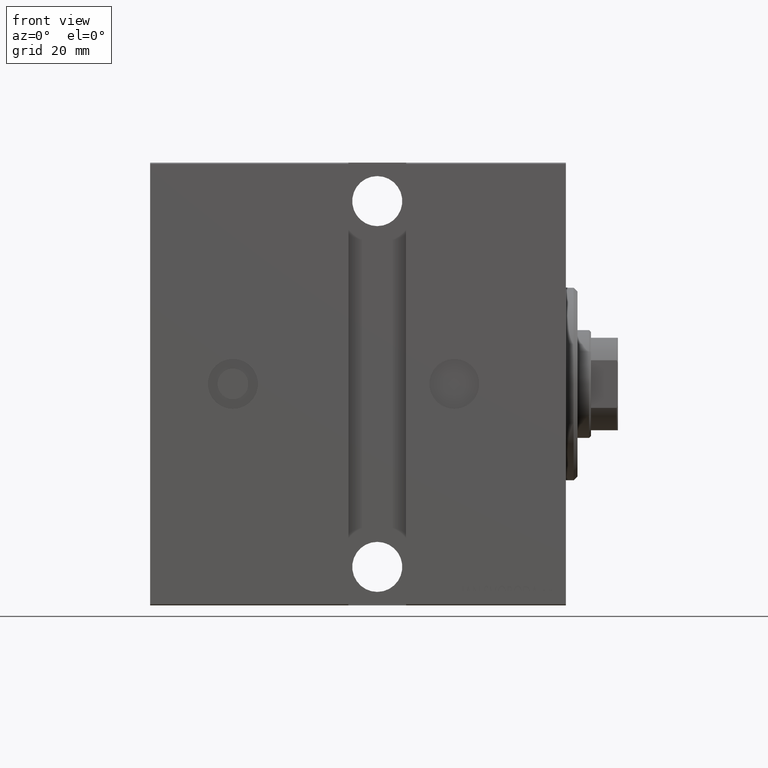
[diagram: clean part render]
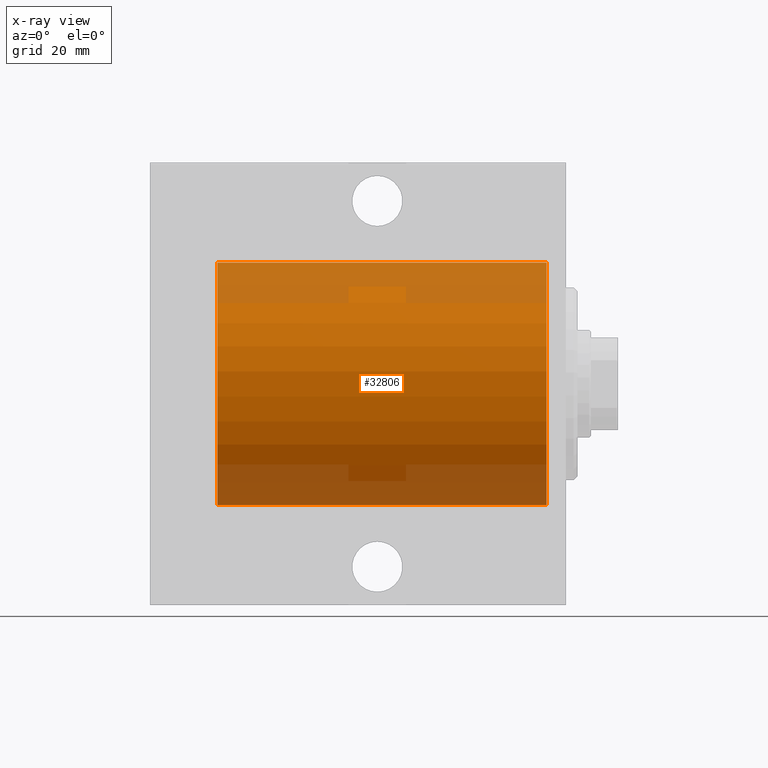
[diagram: x-ray — body ghosted, one internal face saturated and labeled with its STEP entity id]
A machine part, front view, then the same camera in x-ray: the body is ghosted and one INTERNAL B-rep face — a face not visible from any outside direction — is saturated and labeled: STEP entity #32806.
In plain terms, the highlighted cylindrical surface (partial cylindrical patch) has radius 31.5 mm, axis along (1, 0, -0).
Its self-contained STEP definition (entity closure, byte-faithful):
#1619 = EDGE_CURVE ( 'NONE', #8972, #35236, #10020, .T. ) ;
#2065 = LINE ( 'NONE', #27722, #36559 ) ;
#4325 = DIRECTION ( 'NONE',  ( 0.000000000000000000, 0.000000000000000000, 1.000000000000000000 ) ) ;
#4702 = EDGE_LOOP ( 'NONE', ( #13018, #20186, #18350, #33462 ) ) ;
#7529 = CARTESIAN_POINT ( 'NONE',  ( 5.000000000000004441, 0.000000000000000000, 0.000000000000000000 ) ) ;
#7625 = FACE_OUTER_BOUND ( 'NONE', #4702, .T. ) ;
#8972 = VERTEX_POINT ( 'NONE', #25593 ) ;
#9594 = CARTESIAN_POINT ( 'NONE',  ( 90.50000000000000000, 3.857637417314162689E-15, -31.50000000000000000 ) ) ;
#10020 = LINE ( 'NONE', #9594, #37483 ) ;
#13018 = ORIENTED_EDGE ( 'NONE', *, *, #1619, .F. ) ;
#13457 = DIRECTION ( 'NONE',  ( -1.000000000000000000, -0.000000000000000000, -0.000000000000000000 ) ) ;
#17029 = EDGE_CURVE ( 'NONE', #40574, #35236, #20258, .T. ) ;
#17054 = DIRECTION ( 'NONE',  ( -1.000000000000000000, 0.000000000000000000, 0.000000000000000000 ) ) ;
#17616 = DIRECTION ( 'NONE',  ( -1.000000000000000000, -0.000000000000000000, -0.000000000000000000 ) ) ;
#17681 = CARTESIAN_POINT ( 'NONE',  ( 90.50000000000000000, 0.000000000000000000, 0.000000000000000000 ) ) ;
#17747 = DIRECTION ( 'NONE',  ( 0.000000000000000000, 0.000000000000000000, 1.000000000000000000 ) ) ;
#18350 = ORIENTED_EDGE ( 'NONE', *, *, #30151, .T. ) ;
#20186 = ORIENTED_EDGE ( 'NONE', *, *, #24928, .F. ) ;
#20258 = CIRCLE ( 'NONE', #40156, 31.50000000000000000 ) ;
#20674 = DIRECTION ( 'NONE',  ( 0.000000000000000000, 0.000000000000000000, 1.000000000000000000 ) ) ;
#20990 = CARTESIAN_POINT ( 'NONE',  ( 90.50000000000000000, 0.000000000000000000, 0.000000000000000000 ) ) ;
#21207 = DIRECTION ( 'NONE',  ( -1.000000000000000000, -0.000000000000000000, -0.000000000000000000 ) ) ;
#24928 = EDGE_CURVE ( 'NONE', #30570, #8972, #27622, .T. ) ;
#25593 = CARTESIAN_POINT ( 'NONE',  ( 90.50000000000000000, 3.857637417314162689E-15, -31.50000000000000000 ) ) ;
#26996 = CARTESIAN_POINT ( 'NONE',  ( 90.50000000000000000, 0.000000000000000000, 31.50000000000000000 ) ) ;
#27622 = CIRCLE ( 'NONE', #35160, 31.50000000000000000 ) ;
#27722 = CARTESIAN_POINT ( 'NONE',  ( 90.50000000000000000, 0.000000000000000000, 31.50000000000000000 ) ) ;
#30151 = EDGE_CURVE ( 'NONE', #30570, #40574, #2065, .T. ) ;
#30570 = VERTEX_POINT ( 'NONE', #26996 ) ;
#31284 = CYLINDRICAL_SURFACE ( 'NONE', #40050, 31.50000000000000000 ) ;
#32806 = ADVANCED_FACE ( 'NONE', ( #7625 ), #31284, .F. ) ;
#32943 = DIRECTION ( 'NONE',  ( -1.000000000000000000, 0.000000000000000000, 0.000000000000000000 ) ) ;
#33161 = CARTESIAN_POINT ( 'NONE',  ( 5.000000000000004441, 0.000000000000000000, 31.50000000000000000 ) ) ;
#33462 = ORIENTED_EDGE ( 'NONE', *, *, #17029, .T. ) ;
#35160 = AXIS2_PLACEMENT_3D ( 'NONE', #17681, #17054, #4325 ) ;
#35236 = VERTEX_POINT ( 'NONE', #35449 ) ;
#35449 = CARTESIAN_POINT ( 'NONE',  ( 5.000000000000004441, 3.857637417314162689E-15, -31.50000000000000000 ) ) ;
#36559 = VECTOR ( 'NONE', #17616, 1000.000000000000000 ) ;
#37483 = VECTOR ( 'NONE', #13457, 1000.000000000000000 ) ;
#40050 = AXIS2_PLACEMENT_3D ( 'NONE', #20990, #21207, #17747 ) ;
#40156 = AXIS2_PLACEMENT_3D ( 'NONE', #7529, #32943, #20674 ) ;
#40574 = VERTEX_POINT ( 'NONE', #33161 ) ;